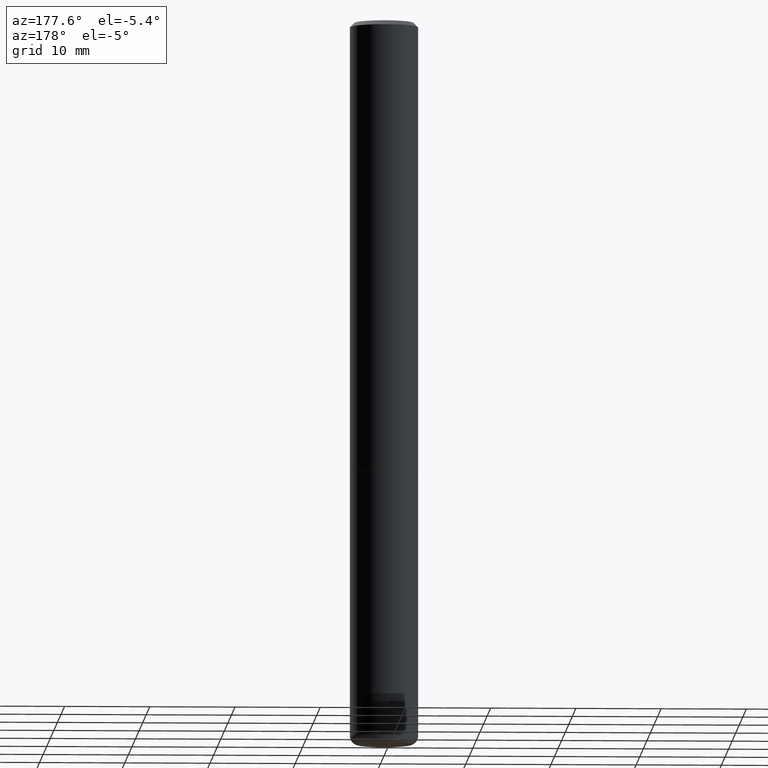
[diagram: clean part render]
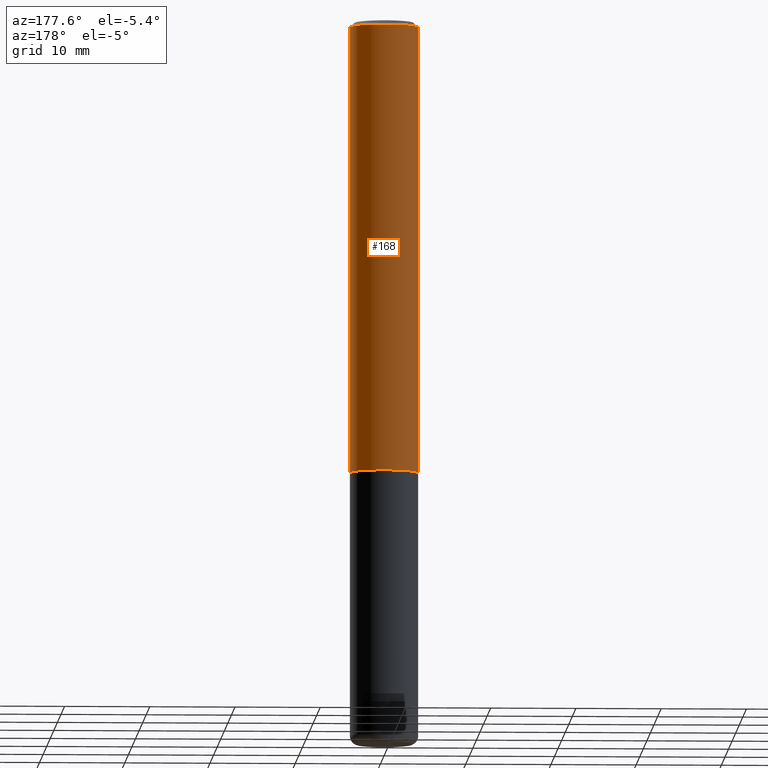
[diagram: same view with one face highlighted and labeled with its STEP entity id]
A machine part, auxiliary view. The second image highlights one B-rep face of the part: STEP entity #168.
In plain terms, the highlighted cylindrical surface (edge-blend (fillet) strip) has radius 4.0005 mm, axis along (-0, 0, 1).
Its self-contained STEP definition (entity closure, byte-faithful):
#12 = CARTESIAN_POINT ( 'NONE',  ( 0.1575000000000000289, -1.150358061425879472E-15, -0.02000000000000003511 ) ) ;
#15 = CARTESIAN_POINT ( 'NONE',  ( 0.1575000000000001954, -8.381999250160736190E-15, -2.085699999999999665 ) ) ;
#41 = CARTESIAN_POINT ( 'NONE',  ( -0.1575000000000000289, 1.029986994958724182E-15, -0.02000000000000003511 ) ) ;
#52 = VERTEX_POINT ( 'NONE', #82 ) ;
#61 = CIRCLE ( 'NONE', #349, 0.1575000000000001954 ) ;
#71 = LINE ( 'NONE', #287, #359 ) ;
#73 = DIRECTION ( 'NONE',  ( 1.000000000000000000, -6.982962677686265922E-15, 0.000000000000000000 ) ) ;
#74 = CYLINDRICAL_SURFACE ( 'NONE', #231, 0.1575000000000000844 ) ;
#82 = CARTESIAN_POINT ( 'NONE',  ( -0.1575000000000001954, -2.556901318778844062E-15, -2.085699999999999665 ) ) ;
#86 = ORIENTED_EDGE ( 'NONE', *, *, #142, .T. ) ;
#88 = EDGE_CURVE ( 'NONE', #208, #182, #164, .T. ) ;
#89 = ORIENTED_EDGE ( 'NONE', *, *, #88, .F. ) ;
#116 = DIRECTION ( 'NONE',  ( -2.445468806185136597E-29, 3.491481338843145583E-15, 1.000000000000000000 ) ) ;
#126 = ORIENTED_EDGE ( 'NONE', *, *, #224, .F. ) ;
#139 = FACE_OUTER_BOUND ( 'NONE', #345, .T. ) ;
#140 = CARTESIAN_POINT ( 'NONE',  ( 0.1575000000000000844, -1.099816621735587677E-15, 7.679978421878603638E-30 ) ) ;
#142 = EDGE_CURVE ( 'NONE', #52, #182, #71, .T. ) ;
#154 = VERTEX_POINT ( 'NONE', #15 ) ;
#164 = CIRCLE ( 'NONE', #400, 0.1575000000000000289 ) ;
#168 = ADVANCED_FACE ( 'NONE', ( #139 ), #74, .T. ) ;
#179 = EDGE_CURVE ( 'NONE', #154, #52, #61, .T. ) ;
#182 = VERTEX_POINT ( 'NONE', #41 ) ;
#198 = DIRECTION ( 'NONE',  ( -2.445468806185136877E-29, 3.491481338843145188E-15, 1.000000000000000000 ) ) ;
#206 = VECTOR ( 'NONE', #198, 39.37007874015748143 ) ;
#208 = VERTEX_POINT ( 'NONE', #12 ) ;
#215 = CARTESIAN_POINT ( 'NONE',  ( 4.890937612370281041E-31, -6.982962677686302702E-17, -0.02000000000000003511 ) ) ;
#224 = EDGE_CURVE ( 'NONE', #154, #208, #364, .T. ) ;
#230 = DIRECTION ( 'NONE',  ( 1.000000000000000000, -6.982962677686267499E-15, 4.876176775795936353E-29 ) ) ;
#231 = AXIS2_PLACEMENT_3D ( 'NONE', #356, #236, #230 ) ;
#233 = CARTESIAN_POINT ( 'NONE',  ( 5.100514289060338336E-29, -7.282182628425147921E-15, -2.085699999999999665 ) ) ;
#236 = DIRECTION ( 'NONE',  ( -2.445468806185136597E-29, 3.491481338843145583E-15, 1.000000000000000000 ) ) ;
#287 = CARTESIAN_POINT ( 'NONE',  ( -0.1575000000000000844, 1.119104808822158392E-15, -7.747322767151481189E-30 ) ) ;
#291 = DIRECTION ( 'NONE',  ( -2.445468806185136877E-29, 3.491481338843145188E-15, 1.000000000000000000 ) ) ;
#325 = DIRECTION ( 'NONE',  ( -2.445468806185136597E-29, 3.491481338843145583E-15, 1.000000000000000000 ) ) ;
#345 = EDGE_LOOP ( 'NONE', ( #347, #86, #89, #126 ) ) ;
#347 = ORIENTED_EDGE ( 'NONE', *, *, #179, .T. ) ;
#349 = AXIS2_PLACEMENT_3D ( 'NONE', #233, #325, #73 ) ;
#356 = CARTESIAN_POINT ( 'NONE',  ( 0.000000000000000000, 0.000000000000000000, 0.000000000000000000 ) ) ;
#359 = VECTOR ( 'NONE', #291, 39.37007874015748143 ) ;
#364 = LINE ( 'NONE', #140, #206 ) ;
#382 = DIRECTION ( 'NONE',  ( 1.000000000000000000, -6.982962677686267499E-15, 0.000000000000000000 ) ) ;
#400 = AXIS2_PLACEMENT_3D ( 'NONE', #215, #116, #382 ) ;